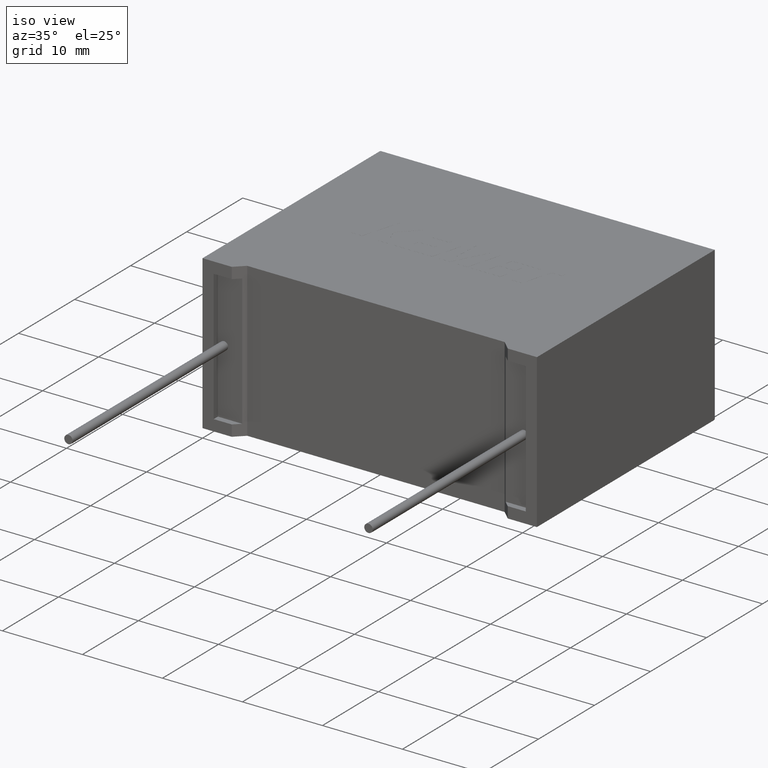
[diagram: clean part render]
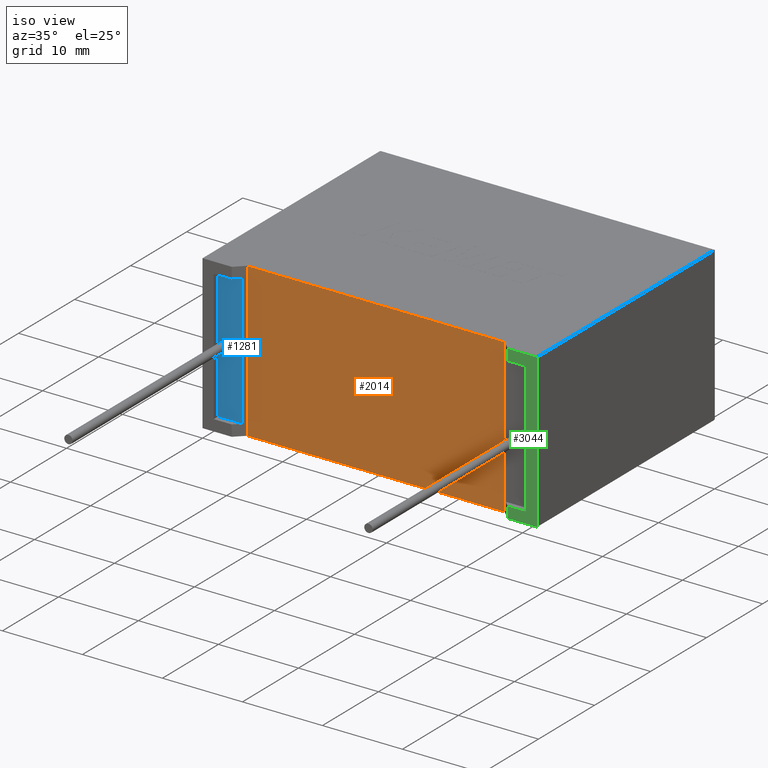
[diagram: same view with three faces highlighted in distinct colors, each labeled with its STEP entity id]
A machine part, iso view with three faces highlighted in distinct colors.
Their STEP definitions:

[orange] entity #2014 — the highlighted planar face has unit normal (-0, 1, 0).
#123 = ORIENTED_EDGE ( 'NONE', *, *, #1856, .T. ) ;
#179 = VECTOR ( 'NONE', #1495, 1000.000000000000000 ) ;
#351 = DIRECTION ( 'NONE',  ( -1.000000000000000000, -1.212964107801604344E-16, 0.000000000000000000 ) ) ;
#407 = LINE ( 'NONE', #1782, #2528 ) ;
#445 = EDGE_CURVE ( 'NONE', #902, #1050, #1941, .T. ) ;
#509 = LINE ( 'NONE', #2191, #2073 ) ;
#606 = DIRECTION ( 'NONE',  ( -1.000000000000000000, -1.212964107801604344E-16, 0.000000000000000000 ) ) ;
#815 = VECTOR ( 'NONE', #1268, 1000.000000000000000 ) ;
#823 = CARTESIAN_POINT ( 'NONE',  ( 4.810785999999999341, 1.106807999999999348, 19.19999999999999929 ) ) ;
#902 = VERTEX_POINT ( 'NONE', #1714 ) ;
#1050 = VERTEX_POINT ( 'NONE', #823 ) ;
#1123 = CARTESIAN_POINT ( 'NONE',  ( 36.98921399999999693, 1.106807999999999348, 0.000000000000000000 ) ) ;
#1234 = VERTEX_POINT ( 'NONE', #1123 ) ;
#1268 = DIRECTION ( 'NONE',  ( -0.000000000000000000, -0.000000000000000000, 1.000000000000000000 ) ) ;
#1299 = DIRECTION ( 'NONE',  ( -1.000000000000000000, -1.212964107801604344E-16, 0.000000000000000000 ) ) ;
#1309 = DIRECTION ( 'NONE',  ( -1.212964107801604344E-16, 1.000000000000000000, 0.000000000000000000 ) ) ;
#1392 = LINE ( 'NONE', #2583, #815 ) ;
#1448 = AXIS2_PLACEMENT_3D ( 'NONE', #2450, #1309, #351 ) ;
#1495 = DIRECTION ( 'NONE',  ( -0.000000000000000000, -0.000000000000000000, 1.000000000000000000 ) ) ;
#1714 = CARTESIAN_POINT ( 'NONE',  ( 4.810785999999999341, 1.106807999999999348, 0.000000000000000000 ) ) ;
#1782 = CARTESIAN_POINT ( 'NONE',  ( 20.89999999999999858, 1.106808000000001124, 19.19999999999999929 ) ) ;
#1856 = EDGE_CURVE ( 'NONE', #2325, #1050, #407, .T. ) ;
#1941 = LINE ( 'NONE', #2663, #179 ) ;
#1982 = EDGE_CURVE ( 'NONE', #1234, #902, #509, .T. ) ;
#2014 = ADVANCED_FACE ( 'NONE', ( #2203 ), #2915, .F. ) ;
#2073 = VECTOR ( 'NONE', #606, 1000.000000000000000 ) ;
#2134 = ORIENTED_EDGE ( 'NONE', *, *, #1982, .F. ) ;
#2172 = CARTESIAN_POINT ( 'NONE',  ( 36.98921399999999693, 1.106807999999999348, 19.19999999999999929 ) ) ;
#2186 = EDGE_LOOP ( 'NONE', ( #123, #2991, #2134, #2850 ) ) ;
#2191 = CARTESIAN_POINT ( 'NONE',  ( 20.89999999999999858, 1.106808000000001124, 0.000000000000000000 ) ) ;
#2203 = FACE_OUTER_BOUND ( 'NONE', #2186, .T. ) ;
#2325 = VERTEX_POINT ( 'NONE', #2172 ) ;
#2450 = CARTESIAN_POINT ( 'NONE',  ( 20.89999999999999858, 1.106808000000001124, 0.000000000000000000 ) ) ;
#2528 = VECTOR ( 'NONE', #1299, 1000.000000000000000 ) ;
#2583 = CARTESIAN_POINT ( 'NONE',  ( 36.98921399999999693, 1.106807999999999348, 0.000000000000000000 ) ) ;
#2596 = EDGE_CURVE ( 'NONE', #1234, #2325, #1392, .T. ) ;
#2663 = CARTESIAN_POINT ( 'NONE',  ( 4.810785999999999341, 1.106807999999999348, 0.000000000000000000 ) ) ;
#2850 = ORIENTED_EDGE ( 'NONE', *, *, #2596, .T. ) ;
#2915 = PLANE ( 'NONE',  #1448 ) ;
#2991 = ORIENTED_EDGE ( 'NONE', *, *, #445, .F. ) ;

[blue] entity #1281 — the highlighted planar face has unit normal (0, -1, 0).
#80 = EDGE_CURVE ( 'NONE', #2167, #1498, #1527, .T. ) ;
#148 = CARTESIAN_POINT ( 'NONE',  ( 2.149999999999999023, 0.7500000000000000000, 9.599999999999999645 ) ) ;
#210 = DIRECTION ( 'NONE',  ( -1.000000000000000000, 0.000000000000000000, -8.892977427815748891E-17 ) ) ;
#217 = VECTOR ( 'NONE', #1891, 1000.000000000000000 ) ;
#222 = LINE ( 'NONE', #698, #217 ) ;
#226 = EDGE_CURVE ( 'NONE', #2732, #1269, #1088, .T. ) ;
#329 = AXIS2_PLACEMENT_3D ( 'NONE', #2278, #599, #1563 ) ;
#424 = CARTESIAN_POINT ( 'NONE',  ( 1.393333194000000219, 0.7500000000000000000, 17.80666680599999552 ) ) ;
#516 = ORIENTED_EDGE ( 'NONE', *, *, #937, .T. ) ;
#599 = DIRECTION ( 'NONE',  ( 0.000000000000000000, -1.000000000000000000, 0.000000000000000000 ) ) ;
#600 = EDGE_LOOP ( 'NONE', ( #1608, #1890 ) ) ;
#661 = PLANE ( 'NONE',  #2424 ) ;
#665 = EDGE_CURVE ( 'NONE', #907, #1498, #222, .T. ) ;
#698 = CARTESIAN_POINT ( 'NONE',  ( 1.393333193999999997, 0.7500000000000000000, 1.393333193999999997 ) ) ;
#779 = CARTESIAN_POINT ( 'NONE',  ( 2.149999999999999023, 0.7500000000000000000, 9.074999999999999289 ) ) ;
#809 = DIRECTION ( 'NONE',  ( 0.000000000000000000, 0.000000000000000000, -1.000000000000000000 ) ) ;
#907 = VERTEX_POINT ( 'NONE', #1746 ) ;
#917 = FACE_OUTER_BOUND ( 'NONE', #1257, .T. ) ;
#937 = EDGE_CURVE ( 'NONE', #2167, #1466, #1287, .T. ) ;
#951 = CARTESIAN_POINT ( 'NONE',  ( 4.436576804649043915, 0.7500000000000000000, 17.80666680599999907 ) ) ;
#1088 = CIRCLE ( 'NONE', #2217, 0.5249999999999994671 ) ;
#1098 = VECTOR ( 'NONE', #1861, 1000.000000000000000 ) ;
#1117 = FACE_BOUND ( 'NONE', #600, .T. ) ;
#1204 = LINE ( 'NONE', #424, #1098 ) ;
#1257 = EDGE_LOOP ( 'NONE', ( #2137, #516, #1282, #1562 ) ) ;
#1269 = VERTEX_POINT ( 'NONE', #779 ) ;
#1281 = ADVANCED_FACE ( 'NONE', ( #917, #1117 ), #661, .T. ) ;
#1282 = ORIENTED_EDGE ( 'NONE', *, *, #1883, .T. ) ;
#1287 = LINE ( 'NONE', #1597, #1676 ) ;
#1466 = VERTEX_POINT ( 'NONE', #1759 ) ;
#1498 = VERTEX_POINT ( 'NONE', #3049 ) ;
#1499 = CARTESIAN_POINT ( 'NONE',  ( 4.436576804649043915, 0.7500000000000000000, 0.000000000000000000 ) ) ;
#1527 = LINE ( 'NONE', #1499, #1582 ) ;
#1562 = ORIENTED_EDGE ( 'NONE', *, *, #665, .T. ) ;
#1563 = DIRECTION ( 'NONE',  ( 0.000000000000000000, 0.000000000000000000, -1.000000000000000000 ) ) ;
#1582 = VECTOR ( 'NONE', #809, 1000.000000000000000 ) ;
#1597 = CARTESIAN_POINT ( 'NONE',  ( 40.40666680599999694, 0.7500000000000000000, 17.80666680599999907 ) ) ;
#1608 = ORIENTED_EDGE ( 'NONE', *, *, #226, .F. ) ;
#1613 = DIRECTION ( 'NONE',  ( 0.000000000000000000, -1.000000000000000000, 0.000000000000000000 ) ) ;
#1676 = VECTOR ( 'NONE', #210, 1000.000000000000000 ) ;
#1746 = CARTESIAN_POINT ( 'NONE',  ( 1.393333193999999997, 0.7500000000000000000, 1.393333193999999997 ) ) ;
#1759 = CARTESIAN_POINT ( 'NONE',  ( 1.393333194000000219, 0.7500000000000000000, 17.80666680599999552 ) ) ;
#1861 = DIRECTION ( 'NONE',  ( -1.321123664595266360E-17, 0.000000000000000000, -1.000000000000000000 ) ) ;
#1881 = CIRCLE ( 'NONE', #329, 0.5249999999999994671 ) ;
#1883 = EDGE_CURVE ( 'NONE', #1466, #907, #1204, .T. ) ;
#1890 = ORIENTED_EDGE ( 'NONE', *, *, #3028, .F. ) ;
#1891 = DIRECTION ( 'NONE',  ( 1.000000000000000000, 0.000000000000000000, 0.000000000000000000 ) ) ;
#1916 = CARTESIAN_POINT ( 'NONE',  ( 2.149999999999999023, 0.7500000000000000000, 10.12499999999999822 ) ) ;
#2137 = ORIENTED_EDGE ( 'NONE', *, *, #80, .F. ) ;
#2167 = VERTEX_POINT ( 'NONE', #951 ) ;
#2217 = AXIS2_PLACEMENT_3D ( 'NONE', #148, #2385, #2363 ) ;
#2278 = CARTESIAN_POINT ( 'NONE',  ( 2.149999999999999023, 0.7500000000000000000, 9.599999999999999645 ) ) ;
#2363 = DIRECTION ( 'NONE',  ( 0.000000000000000000, 0.000000000000000000, -1.000000000000000000 ) ) ;
#2366 = DIRECTION ( 'NONE',  ( 0.000000000000000000, 0.000000000000000000, -1.000000000000000000 ) ) ;
#2385 = DIRECTION ( 'NONE',  ( 0.000000000000000000, -1.000000000000000000, 0.000000000000000000 ) ) ;
#2424 = AXIS2_PLACEMENT_3D ( 'NONE', #2723, #1613, #2366 ) ;
#2723 = CARTESIAN_POINT ( 'NONE',  ( 0.000000000000000000, 0.7500000000000000000, 0.000000000000000000 ) ) ;
#2732 = VERTEX_POINT ( 'NONE', #1916 ) ;
#3028 = EDGE_CURVE ( 'NONE', #1269, #2732, #1881, .T. ) ;
#3049 = CARTESIAN_POINT ( 'NONE',  ( 4.436576804649043915, 0.7500000000000000000, 1.393333193999999997 ) ) ;

[green] entity #3044 — the highlighted planar face has unit normal (0, 1, 0).
#111 = DIRECTION ( 'NONE',  ( 1.000000000000000000, 0.000000000000000000, 0.000000000000000000 ) ) ;
#129 = DIRECTION ( 'NONE',  ( 0.000000000000000000, 1.000000000000000000, 0.000000000000000000 ) ) ;
#143 = VERTEX_POINT ( 'NONE', #2272 ) ;
#144 = CARTESIAN_POINT ( 'NONE',  ( 0.000000000000000000, 0.000000000000000000, 19.19999999999999929 ) ) ;
#285 = DIRECTION ( 'NONE',  ( 1.000000000000000000, 0.000000000000000000, 0.000000000000000000 ) ) ;
#294 = EDGE_CURVE ( 'NONE', #707, #569, #1963, .T. ) ;
#323 = VECTOR ( 'NONE', #922, 1000.000000000000000 ) ;
#381 = FACE_OUTER_BOUND ( 'NONE', #1575, .T. ) ;
#569 = VERTEX_POINT ( 'NONE', #2765 ) ;
#601 = DIRECTION ( 'NONE',  ( -0.000000000000000000, -0.000000000000000000, -1.000000000000000000 ) ) ;
#656 = VECTOR ( 'NONE', #2820, 1000.000000000000000 ) ;
#687 = EDGE_CURVE ( 'NONE', #2212, #1749, #2615, .T. ) ;
#707 = VERTEX_POINT ( 'NONE', #1215 ) ;
#727 = CARTESIAN_POINT ( 'NONE',  ( 1.393333193999999997, 0.000000000000000000, 1.393333193999999997 ) ) ;
#733 = LINE ( 'NONE', #1441, #323 ) ;
#830 = PLANE ( 'NONE',  #2636 ) ;
#876 = CARTESIAN_POINT ( 'NONE',  ( 0.000000000000000000, 0.000000000000000000, 19.19999999999999929 ) ) ;
#922 = DIRECTION ( 'NONE',  ( -0.000000000000000000, -0.000000000000000000, 1.000000000000000000 ) ) ;
#927 = CARTESIAN_POINT ( 'NONE',  ( 0.000000000000000000, 0.000000000000000000, 0.000000000000000000 ) ) ;
#934 = ORIENTED_EDGE ( 'NONE', *, *, #1075, .F. ) ;
#989 = ORIENTED_EDGE ( 'NONE', *, *, #2316, .F. ) ;
#1016 = CARTESIAN_POINT ( 'NONE',  ( 38.14999999999999858, 2.234980408443919708E-16, 17.80666680599999907 ) ) ;
#1062 = CARTESIAN_POINT ( 'NONE',  ( 40.40666680599999694, 0.000000000000000000, 1.393333193999999997 ) ) ;
#1075 = EDGE_CURVE ( 'NONE', #143, #2212, #2206, .T. ) ;
#1112 = EDGE_CURVE ( 'NONE', #569, #1192, #1576, .T. ) ;
#1150 = VECTOR ( 'NONE', #111, 1000.000000000000000 ) ;
#1177 = ORIENTED_EDGE ( 'NONE', *, *, #1368, .T. ) ;
#1192 = VERTEX_POINT ( 'NONE', #3018 ) ;
#1215 = CARTESIAN_POINT ( 'NONE',  ( 38.14999999999999858, 2.234980408443919708E-16, 19.19999999999999929 ) ) ;
#1295 = VECTOR ( 'NONE', #285, 1000.000000000000000 ) ;
#1368 = EDGE_CURVE ( 'NONE', #2953, #1192, #2120, .T. ) ;
#1441 = CARTESIAN_POINT ( 'NONE',  ( 38.14999999999999858, 2.234980408443919708E-16, 0.000000000000000000 ) ) ;
#1523 = DIRECTION ( 'NONE',  ( -0.000000000000000000, -0.000000000000000000, 1.000000000000000000 ) ) ;
#1551 = ORIENTED_EDGE ( 'NONE', *, *, #1112, .F. ) ;
#1575 = EDGE_LOOP ( 'NONE', ( #989, #1177, #1551, #2945, #2092, #2097, #934, #1931 ) ) ;
#1576 = LINE ( 'NONE', #2522, #2779 ) ;
#1673 = DIRECTION ( 'NONE',  ( 1.000000000000000000, 0.000000000000000000, 0.000000000000000000 ) ) ;
#1704 = CARTESIAN_POINT ( 'NONE',  ( 38.14999999999999858, 2.234980408443919708E-16, 0.000000000000000000 ) ) ;
#1749 = VERTEX_POINT ( 'NONE', #1016 ) ;
#1849 = CARTESIAN_POINT ( 'NONE',  ( 40.40666680599999694, 0.000000000000000000, 17.80666680599999907 ) ) ;
#1894 = LINE ( 'NONE', #727, #1295 ) ;
#1901 = EDGE_CURVE ( 'NONE', #2846, #143, #1894, .T. ) ;
#1931 = ORIENTED_EDGE ( 'NONE', *, *, #1901, .F. ) ;
#1963 = LINE ( 'NONE', #144, #1150 ) ;
#2020 = VECTOR ( 'NONE', #1673, 1000.000000000000000 ) ;
#2074 = CARTESIAN_POINT ( 'NONE',  ( 38.14999999999999858, 2.234980408443919708E-16, 1.393333193999999997 ) ) ;
#2092 = ORIENTED_EDGE ( 'NONE', *, *, #2540, .F. ) ;
#2097 = ORIENTED_EDGE ( 'NONE', *, *, #687, .F. ) ;
#2120 = LINE ( 'NONE', #927, #2020 ) ;
#2206 = LINE ( 'NONE', #1062, #2620 ) ;
#2212 = VERTEX_POINT ( 'NONE', #2431 ) ;
#2272 = CARTESIAN_POINT ( 'NONE',  ( 40.40666680599999694, 0.000000000000000000, 1.393333193999999997 ) ) ;
#2316 = EDGE_CURVE ( 'NONE', #2953, #2846, #2929, .T. ) ;
#2431 = CARTESIAN_POINT ( 'NONE',  ( 40.40666680599999694, 0.000000000000000000, 17.80666680599999907 ) ) ;
#2515 = DIRECTION ( 'NONE',  ( 0.000000000000000000, 0.000000000000000000, 1.000000000000000000 ) ) ;
#2522 = CARTESIAN_POINT ( 'NONE',  ( 41.79999999999999716, 0.000000000000000000, 19.19999999999999929 ) ) ;
#2540 = EDGE_CURVE ( 'NONE', #1749, #707, #733, .T. ) ;
#2615 = LINE ( 'NONE', #1849, #656 ) ;
#2620 = VECTOR ( 'NONE', #2515, 1000.000000000000000 ) ;
#2629 = VECTOR ( 'NONE', #1523, 1000.000000000000000 ) ;
#2636 = AXIS2_PLACEMENT_3D ( 'NONE', #876, #129, #2776 ) ;
#2696 = CARTESIAN_POINT ( 'NONE',  ( 38.14999999999999858, 2.234980408443919708E-16, 0.000000000000000000 ) ) ;
#2765 = CARTESIAN_POINT ( 'NONE',  ( 41.79999999999999716, 0.000000000000000000, 19.19999999999999929 ) ) ;
#2776 = DIRECTION ( 'NONE',  ( 0.000000000000000000, -0.000000000000000000, 1.000000000000000000 ) ) ;
#2779 = VECTOR ( 'NONE', #601, 1000.000000000000000 ) ;
#2820 = DIRECTION ( 'NONE',  ( -1.000000000000000000, 0.000000000000000000, -8.892977427815748891E-17 ) ) ;
#2846 = VERTEX_POINT ( 'NONE', #2074 ) ;
#2929 = LINE ( 'NONE', #2696, #2629 ) ;
#2945 = ORIENTED_EDGE ( 'NONE', *, *, #294, .F. ) ;
#2953 = VERTEX_POINT ( 'NONE', #1704 ) ;
#3018 = CARTESIAN_POINT ( 'NONE',  ( 41.79999999999999716, 0.000000000000000000, 0.000000000000000000 ) ) ;
#3044 = ADVANCED_FACE ( 'NONE', ( #381 ), #830, .F. ) ;